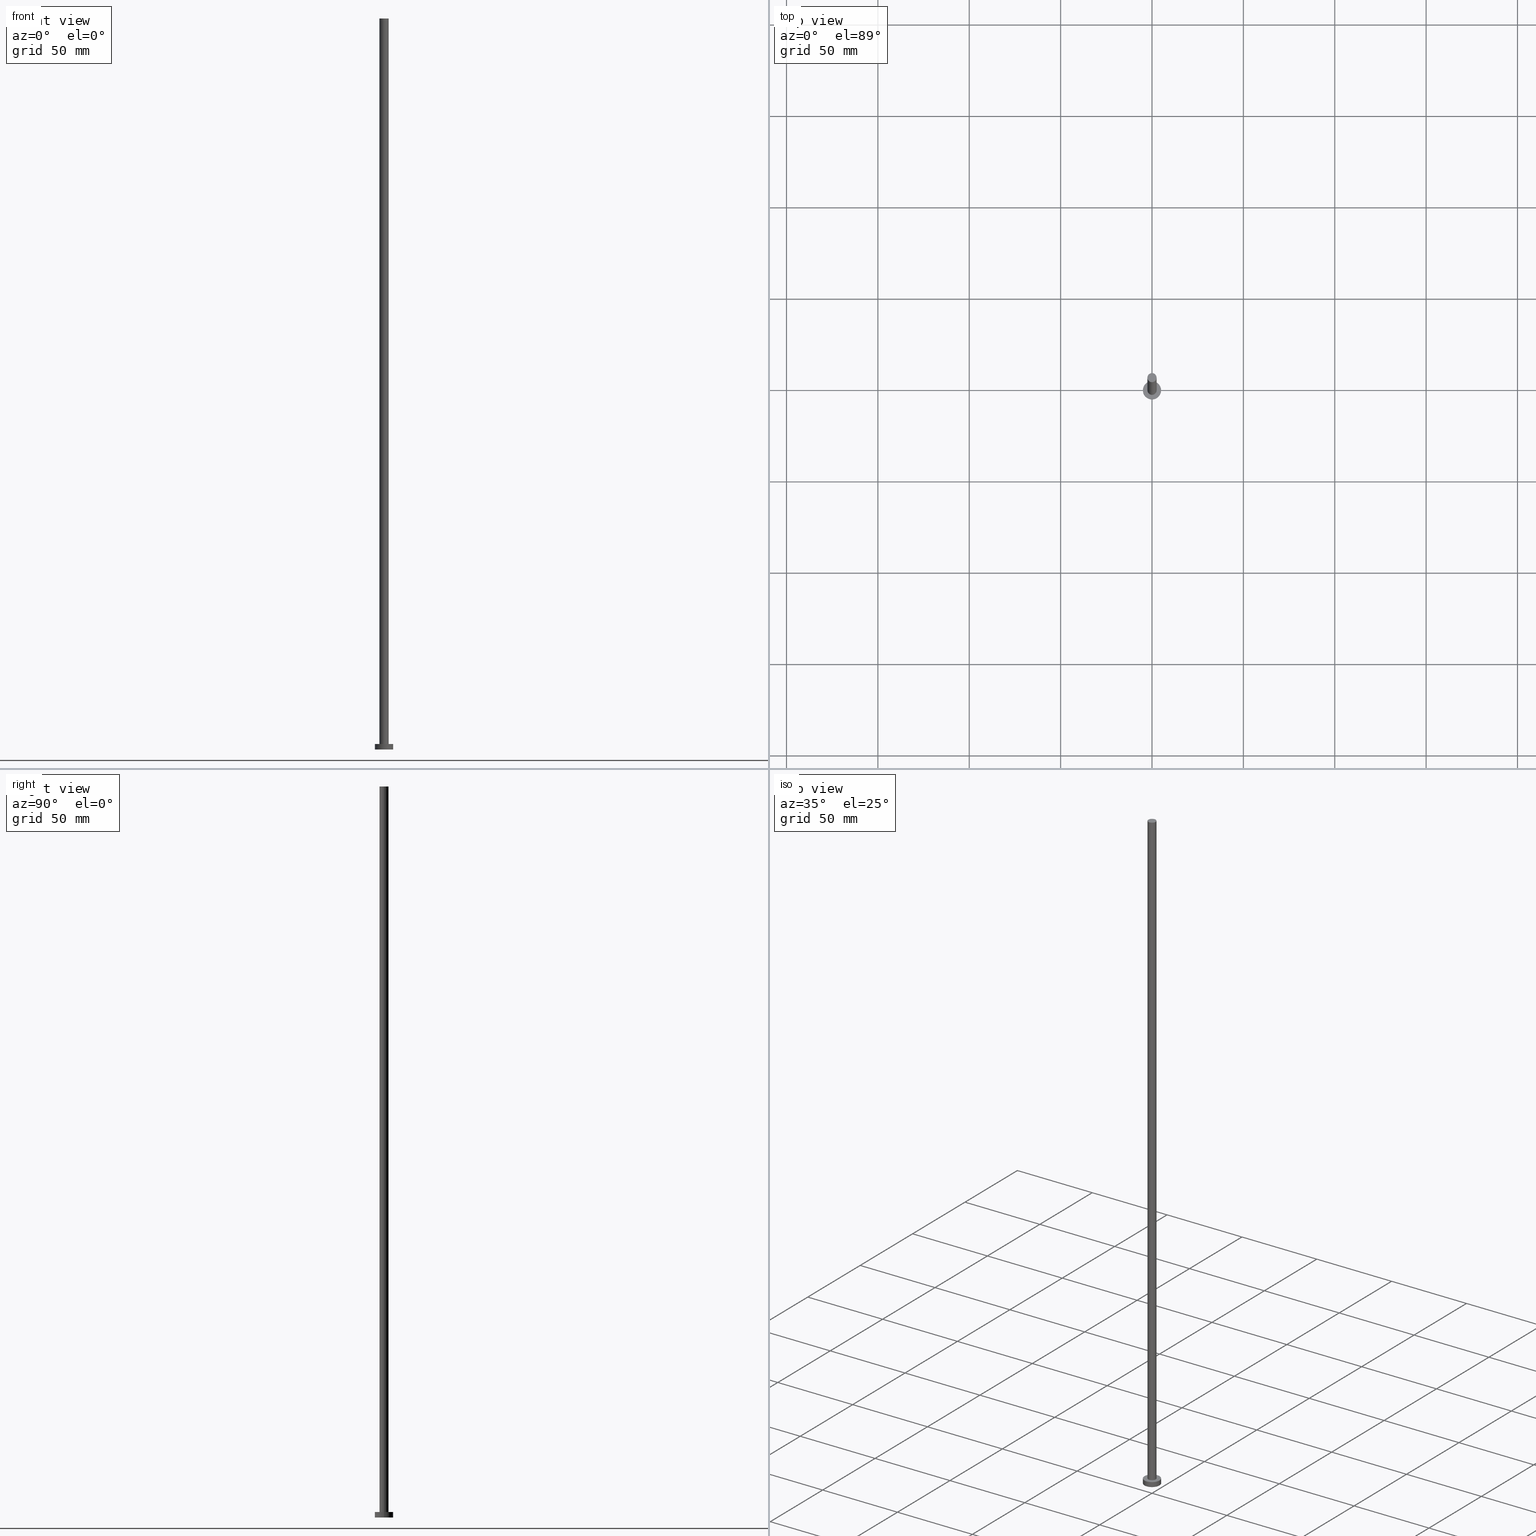
[diagram: canonical four-view strip — front | top / right | iso, engineering-drawing reading convention]
A machine part, canonical four-view strip (front | top / right | iso — engineering-drawing reading convention). The complete STEP part file that produces these views, byte-faithful:
ISO-10303-21;
HEADER;
FILE_DESCRIPTION (( 'STEP AP203' ),
    '1' );
FILE_NAME ('4c9e.STEP',
    '2023-02-13T15:50:03',
    ( '' ),
    ( '' ),
    'SwSTEP 2.0',
    'SolidWorks 2019',
    '' );
FILE_SCHEMA (( 'CONFIG_CONTROL_DESIGN' ));
ENDSEC;

DATA;
#1 = AXIS2_PLACEMENT_3D ( 'NONE', #166, #63, #142 ) ;
#2 = VERTEX_POINT ( 'NONE', #219 ) ;
#3 =( LENGTH_UNIT ( ) NAMED_UNIT ( * ) SI_UNIT ( .MILLI., .METRE. ) );
#4 = APPROVAL_STATUS ( 'not_yet_approved' ) ;
#5 = AXIS2_PLACEMENT_3D ( 'NONE', #197, #201, #13 ) ;
#6 = DIRECTION ( 'NONE',  ( -0.000000000000000000, -0.000000000000000000, -1.000000000000000000 ) ) ;
#7 = APPROVAL_PERSON_ORGANIZATION ( #170, #112, #104 ) ;
#8 = PLANE ( 'NONE',  #191 ) ;
#9 = DIRECTION ( 'NONE',  ( 1.000000000000000000, 0.000000000000000000, 0.000000000000000000 ) ) ;
#10 = CC_DESIGN_PERSON_AND_ORGANIZATION_ASSIGNMENT ( #214, #79, ( #16 ) ) ;
#11 = DIRECTION ( 'NONE',  ( 1.000000000000000000, 0.000000000000000000, 0.000000000000000000 ) ) ;
#12 = CYLINDRICAL_SURFACE ( 'NONE', #141, 5.000000000000000000 ) ;
#13 = DIRECTION ( 'NONE',  ( -1.000000000000000000, 0.000000000000000000, 0.000000000000000000 ) ) ;
#14 = CC_DESIGN_PERSON_AND_ORGANIZATION_ASSIGNMENT ( #255, #85, ( #206 ) ) ;
#15 = AXIS2_PLACEMENT_3D ( 'NONE', #161, #198, #195 ) ;
#16 = PRODUCT_DEFINITION_FORMATION_WITH_SPECIFIED_SOURCE ( 'LIBOVOLN�', '', #206, .NOT_KNOWN. ) ;
#17 = PLANE ( 'NONE',  #1 ) ;
#18 = CALENDAR_DATE ( 2023, 13, 2 ) ;
#19 = ORIENTED_EDGE ( 'NONE', *, *, #127, .F. ) ;
#20 = COORDINATED_UNIVERSAL_TIME_OFFSET ( 1, 0, .AHEAD. ) ;
#21 = DIRECTION ( 'NONE',  ( 1.000000000000000000, 0.000000000000000000, 0.000000000000000000 ) ) ;
#22 = CALENDAR_DATE ( 2023, 13, 2 ) ;
#23 = VERTEX_POINT ( 'NONE', #240 ) ;
#24 = APPLICATION_PROTOCOL_DEFINITION ( 'international standard', 'config_control_design', 1994, #58 ) ;
#25 = VERTEX_POINT ( 'NONE', #42 ) ;
#26 = CIRCLE ( 'NONE', #51, 2.500000000000000000 ) ;
#27 = FACE_OUTER_BOUND ( 'NONE', #106, .T. ) ;
#28 = CC_DESIGN_PERSON_AND_ORGANIZATION_ASSIGNMENT ( #228, #50, ( #147 ) ) ;
#29 = DIRECTION ( 'NONE',  ( -1.000000000000000000, 0.000000000000000000, 0.000000000000000000 ) ) ;
#30 = CARTESIAN_POINT ( 'NONE',  ( -2.500000000000000000, 0.000000000000000000, 3.000000000000000000 ) ) ;
#31 = DIRECTION ( 'NONE',  ( -0.000000000000000000, -0.000000000000000000, -1.000000000000000000 ) ) ;
#32 = DATE_TIME_ROLE ( 'classification_date' ) ;
#33 = DATE_AND_TIME ( #87, #160 ) ;
#34 = CC_DESIGN_SECURITY_CLASSIFICATION ( #69, ( #16 ) ) ;
#35 = EDGE_CURVE ( 'NONE', #25, #234, #190, .T. ) ;
#36 = CC_DESIGN_APPROVAL ( #186, ( #147 ) ) ;
#37 = ADVANCED_FACE ( 'NONE', ( #76 ), #12, .T. ) ;
#38 = ORIENTED_EDGE ( 'NONE', *, *, #91, .T. ) ;
#39 = DIRECTION ( 'NONE',  ( -0.000000000000000000, -0.000000000000000000, -1.000000000000000000 ) ) ;
#40 = AXIS2_PLACEMENT_3D ( 'NONE', #94, #244, #158 ) ;
#41 = PLANE ( 'NONE',  #148 ) ;
#42 = CARTESIAN_POINT ( 'NONE',  ( 5.000000000000000000, 6.123233995736766282E-16, 0.000000000000000000 ) ) ;
#43 = LINE ( 'NONE', #136, #194 ) ;
#44 = DIRECTION ( 'NONE',  ( -1.000000000000000000, 0.000000000000000000, 0.000000000000000000 ) ) ;
#45 = DIRECTION ( 'NONE',  ( 1.000000000000000000, 0.000000000000000000, -0.000000000000000000 ) ) ;
#46 = CC_DESIGN_DATE_AND_TIME_ASSIGNMENT ( #209, #32, ( #69 ) ) ;
#47 = PERSON_AND_ORGANIZATION ( #183, #155 ) ;
#48 = LINE ( 'NONE', #125, #205 ) ;
#49 = ORIENTED_EDGE ( 'NONE', *, *, #254, .T. ) ;
#50 = PERSON_AND_ORGANIZATION_ROLE ( 'creator' ) ;
#51 = AXIS2_PLACEMENT_3D ( 'NONE', #221, #56, #218 ) ;
#52 =( GEOMETRIC_REPRESENTATION_CONTEXT ( 3 ) GLOBAL_UNCERTAINTY_ASSIGNED_CONTEXT ( ( #245 ) ) GLOBAL_UNIT_ASSIGNED_CONTEXT ( ( #3, #68, #173 ) ) REPRESENTATION_CONTEXT ( 'NONE', 'WORKASPACE' ) );
#53 = ORIENTED_EDGE ( 'NONE', *, *, #35, .F. ) ;
#54 = CLOSED_SHELL ( 'NONE', ( #156, #59, #37, #236, #124, #62, #246 ) ) ;
#55 = EDGE_LOOP ( 'NONE', ( #192, #74, #188, #49 ) ) ;
#56 = DIRECTION ( 'NONE',  ( 0.000000000000000000, 0.000000000000000000, 1.000000000000000000 ) ) ;
#57 = CARTESIAN_POINT ( 'NONE',  ( 0.000000000000000000, 0.000000000000000000, 3.000000000000000000 ) ) ;
#58 = APPLICATION_CONTEXT ( 'configuration controlled 3d designs of mechanical parts and assemblies' ) ;
#59 = ADVANCED_FACE ( 'NONE', ( #157 ), #139, .T. ) ;
#60 = LINE ( 'NONE', #178, #165 ) ;
#61 = LOCAL_TIME ( 16, 50, 2.000000000000000000, #204 ) ;
#62 = ADVANCED_FACE ( 'NONE', ( #222 ), #216, .T. ) ;
#63 = DIRECTION ( 'NONE',  ( 0.000000000000000000, 0.000000000000000000, 1.000000000000000000 ) ) ;
#64 = EDGE_LOOP ( 'NONE', ( #239, #208, #67, #168 ) ) ;
#65 = ORIENTED_EDGE ( 'NONE', *, *, #66, .F. ) ;
#66 = EDGE_CURVE ( 'NONE', #2, #73, #93, .T. ) ;
#67 = ORIENTED_EDGE ( 'NONE', *, *, #207, .T. ) ;
#68 =( NAMED_UNIT ( * ) PLANE_ANGLE_UNIT ( ) SI_UNIT ( $, .RADIAN. ) );
#69 = SECURITY_CLASSIFICATION ( '', '', #224 ) ;
#70 = CALENDAR_DATE ( 2023, 13, 2 ) ;
#71 = CARTESIAN_POINT ( 'NONE',  ( 0.000000000000000000, 0.000000000000000000, 400.0000000000000000 ) ) ;
#72 = DIRECTION ( 'NONE',  ( 0.000000000000000000, 0.000000000000000000, 1.000000000000000000 ) ) ;
#73 = VERTEX_POINT ( 'NONE', #30 ) ;
#74 = ORIENTED_EDGE ( 'NONE', *, *, #177, .F. ) ;
#75 = VECTOR ( 'NONE', #6, 1000.000000000000000 ) ;
#76 = FACE_OUTER_BOUND ( 'NONE', #64, .T. ) ;
#77 = DIRECTION ( 'NONE',  ( 1.000000000000000000, 0.000000000000000000, -0.000000000000000000 ) ) ;
#78 = AXIS2_PLACEMENT_3D ( 'NONE', #71, #200, #44 ) ;
#79 = PERSON_AND_ORGANIZATION_ROLE ( 'creator' ) ;
#80 = APPROVAL_DATE_TIME ( #83, #112 ) ;
#81 = DIRECTION ( 'NONE',  ( 0.000000000000000000, 0.000000000000000000, 1.000000000000000000 ) ) ;
#82 = ORIENTED_EDGE ( 'NONE', *, *, #115, .F. ) ;
#83 = DATE_AND_TIME ( #18, #122 ) ;
#84 = DIRECTION ( 'NONE',  ( 1.000000000000000000, 0.000000000000000000, 0.000000000000000000 ) ) ;
#85 = PERSON_AND_ORGANIZATION_ROLE ( 'design_owner' ) ;
#86 = ORIENTED_EDGE ( 'NONE', *, *, #66, .T. ) ;
#87 = CALENDAR_DATE ( 2023, 13, 2 ) ;
#88 = CC_DESIGN_DATE_AND_TIME_ASSIGNMENT ( #233, #110, ( #147 ) ) ;
#89 = ORIENTED_EDGE ( 'NONE', *, *, #254, .F. ) ;
#90 = VERTEX_POINT ( 'NONE', #242 ) ;
#91 = EDGE_CURVE ( 'NONE', #109, #23, #26, .T. ) ;
#92 = FACE_OUTER_BOUND ( 'NONE', #146, .T. ) ;
#93 = CIRCLE ( 'NONE', #129, 2.500000000000000000 ) ;
#94 = CARTESIAN_POINT ( 'NONE',  ( 0.000000000000000000, 0.000000000000000000, 400.0000000000000000 ) ) ;
#95 = DIRECTION ( 'NONE',  ( 0.000000000000000000, 0.000000000000000000, 1.000000000000000000 ) ) ;
#96 = PRODUCT_DEFINITION_SHAPE ( 'NONE', 'NONE',  #147 ) ;
#97 = CARTESIAN_POINT ( 'NONE',  ( 5.000000000000000000, 6.123233995736766282E-16, 3.000000000000000000 ) ) ;
#98 = DIRECTION ( 'NONE',  ( -0.000000000000000000, -0.000000000000000000, -1.000000000000000000 ) ) ;
#99 = CARTESIAN_POINT ( 'NONE',  ( 0.000000000000000000, 0.000000000000000000, 400.0000000000000000 ) ) ;
#100 = APPROVAL ( #4, 'NEUR�EN�' ) ;
#101 = EDGE_CURVE ( 'NONE', #109, #2, #43, .T. ) ;
#102 = CARTESIAN_POINT ( 'NONE',  ( 0.000000000000000000, 0.000000000000000000, 0.000000000000000000 ) ) ;
#103 = CIRCLE ( 'NONE', #220, 5.000000000000000000 ) ;
#104 = APPROVAL_ROLE ( '' ) ;
#105 = APPROVAL_DATE_TIME ( #33, #100 ) ;
#106 = EDGE_LOOP ( 'NONE', ( #82, #53 ) ) ;
#107 = APPLICATION_PROTOCOL_DEFINITION ( 'international standard', 'config_control_design', 1994, #120 ) ;
#108 = APPROVAL_ROLE ( '' ) ;
#109 = VERTEX_POINT ( 'NONE', #114 ) ;
#110 = DATE_TIME_ROLE ( 'creation_date' ) ;
#111 = CIRCLE ( 'NONE', #40, 2.500000000000000000 ) ;
#112 = APPROVAL ( #187, 'NEUR�EN�' ) ;
#113 = EDGE_LOOP ( 'NONE', ( #89, #65 ) ) ;
#114 = CARTESIAN_POINT ( 'NONE',  ( 2.500000000000000000, 3.061616997868383141E-16, 400.0000000000000000 ) ) ;
#115 = EDGE_CURVE ( 'NONE', #234, #25, #229, .T. ) ;
#116 = LOCAL_TIME ( 16, 50, 2.000000000000000000, #174 ) ;
#117 = CARTESIAN_POINT ( 'NONE',  ( 0.000000000000000000, 0.000000000000000000, 3.000000000000000000 ) ) ;
#118 = CYLINDRICAL_SURFACE ( 'NONE', #196, 2.500000000000000000 ) ;
#119 = FACE_OUTER_BOUND ( 'NONE', #212, .T. ) ;
#120 = APPLICATION_CONTEXT ( 'configuration controlled 3d designs of mechanical parts and assemblies' ) ;
#121 = CARTESIAN_POINT ( 'NONE',  ( -5.000000000000000000, 0.000000000000000000, 0.000000000000000000 ) ) ;
#122 = LOCAL_TIME ( 16, 50, 2.000000000000000000, #20 ) ;
#123 = PERSON_AND_ORGANIZATION ( #183, #155 ) ;
#124 = ADVANCED_FACE ( 'NONE', ( #27 ), #41, .F. ) ;
#125 = CARTESIAN_POINT ( 'NONE',  ( -2.500000000000000000, 0.000000000000000000, 400.0000000000000000 ) ) ;
#126 = MANIFOLD_SOLID_BREP ( 'P�idat vysunut�m3', #54 ) ;
#127 = EDGE_CURVE ( 'NONE', #193, #90, #184, .T. ) ;
#128 = ORIENTED_EDGE ( 'NONE', *, *, #91, .F. ) ;
#129 = AXIS2_PLACEMENT_3D ( 'NONE', #238, #72, #11 ) ;
#130 = APPROVAL_ROLE ( '' ) ;
#131 = CIRCLE ( 'NONE', #143, 2.500000000000000000 ) ;
#132 = EDGE_LOOP ( 'NONE', ( #19, #252, #172, #144 ) ) ;
#133 = PRODUCT_RELATED_PRODUCT_CATEGORY ( 'detail', '', ( #206 ) ) ;
#134 = DIRECTION ( 'NONE',  ( 0.000000000000000000, 0.000000000000000000, 1.000000000000000000 ) ) ;
#135 = AXIS2_PLACEMENT_3D ( 'NONE', #102, #152, #21 ) ;
#136 = CARTESIAN_POINT ( 'NONE',  ( 2.500000000000000000, 3.061616997868383141E-16, 400.0000000000000000 ) ) ;
#137 = DIRECTION ( 'NONE',  ( 0.000000000000000000, 0.000000000000000000, 1.000000000000000000 ) ) ;
#138 = CC_DESIGN_PERSON_AND_ORGANIZATION_ASSIGNMENT ( #123, #249, ( #16 ) ) ;
#139 = CYLINDRICAL_SURFACE ( 'NONE', #5, 5.000000000000000000 ) ;
#140 = DIRECTION ( 'NONE',  ( -0.000000000000000000, -0.000000000000000000, -1.000000000000000000 ) ) ;
#141 = AXIS2_PLACEMENT_3D ( 'NONE', #162, #98, #243 ) ;
#142 = DIRECTION ( 'NONE',  ( 1.000000000000000000, 0.000000000000000000, -0.000000000000000000 ) ) ;
#143 = AXIS2_PLACEMENT_3D ( 'NONE', #225, #145, #84 ) ;
#144 = ORIENTED_EDGE ( 'NONE', *, *, #207, .F. ) ;
#145 = DIRECTION ( 'NONE',  ( 0.000000000000000000, 0.000000000000000000, 1.000000000000000000 ) ) ;
#146 = EDGE_LOOP ( 'NONE', ( #213, #159 ) ) ;
#147 = PRODUCT_DEFINITION ( 'NEZN�M�', '', #16, #164 ) ;
#148 = AXIS2_PLACEMENT_3D ( 'NONE', #182, #95, #77 ) ;
#149 = PERSON_AND_ORGANIZATION_ROLE ( 'classification_officer' ) ;
#150 = DATE_AND_TIME ( #70, #116 ) ;
#151 = APPROVAL_PERSON_ORGANIZATION ( #176, #100, #130 ) ;
#152 = DIRECTION ( 'NONE',  ( 0.000000000000000000, 0.000000000000000000, 1.000000000000000000 ) ) ;
#153 = ORIENTED_EDGE ( 'NONE', *, *, #101, .T. ) ;
#154 = AXIS2_PLACEMENT_3D ( 'NONE', #199, #134, #175 ) ;
#155 = ORGANIZATION ( 'NEUR�EN�', 'NEUR�EN�', '' ) ;
#156 = ADVANCED_FACE ( 'NONE', ( #119 ), #118, .T. ) ;
#157 = FACE_OUTER_BOUND ( 'NONE', #132, .T. ) ;
#158 = DIRECTION ( 'NONE',  ( 1.000000000000000000, 0.000000000000000000, 0.000000000000000000 ) ) ;
#159 = ORIENTED_EDGE ( 'NONE', *, *, #127, .T. ) ;
#160 = LOCAL_TIME ( 16, 50, 2.000000000000000000, #211 ) ;
#161 = CARTESIAN_POINT ( 'NONE',  ( 0.000000000000000000, 0.000000000000000000, 0.000000000000000000 ) ) ;
#162 = CARTESIAN_POINT ( 'NONE',  ( 0.000000000000000000, 0.000000000000000000, 3.000000000000000000 ) ) ;
#163 = DIRECTION ( 'NONE',  ( -0.000000000000000000, -0.000000000000000000, -1.000000000000000000 ) ) ;
#164 = DESIGN_CONTEXT ( 'detailed design', #58, 'design' ) ;
#165 = VECTOR ( 'NONE', #140, 1000.000000000000000 ) ;
#166 = CARTESIAN_POINT ( 'NONE',  ( 0.000000000000000000, 0.000000000000000000, 400.0000000000000000 ) ) ;
#167 = SHAPE_DEFINITION_REPRESENTATION ( #96, #169 ) ;
#168 = ORIENTED_EDGE ( 'NONE', *, *, #115, .T. ) ;
#169 = ADVANCED_BREP_SHAPE_REPRESENTATION ( '4c9e', ( #126, #135 ), #52 ) ;
#170 = PERSON_AND_ORGANIZATION ( #183, #155 ) ;
#171 = PERSON_AND_ORGANIZATION ( #183, #155 ) ;
#172 = ORIENTED_EDGE ( 'NONE', *, *, #35, .T. ) ;
#173 =( NAMED_UNIT ( * ) SI_UNIT ( $, .STERADIAN. ) SOLID_ANGLE_UNIT ( ) );
#174 = COORDINATED_UNIVERSAL_TIME_OFFSET ( 1, 0, .AHEAD. ) ;
#175 = DIRECTION ( 'NONE',  ( 1.000000000000000000, 0.000000000000000000, 0.000000000000000000 ) ) ;
#176 = PERSON_AND_ORGANIZATION ( #183, #155 ) ;
#177 = EDGE_CURVE ( 'NONE', #23, #109, #111, .T. ) ;
#178 = CARTESIAN_POINT ( 'NONE',  ( 5.000000000000000000, 6.123233995736766282E-16, 3.000000000000000000 ) ) ;
#179 = FACE_BOUND ( 'NONE', #113, .T. ) ;
#180 = DIRECTION ( 'NONE',  ( 0.000000000000000000, 0.000000000000000000, 1.000000000000000000 ) ) ;
#181 = LINE ( 'NONE', #223, #75 ) ;
#182 = CARTESIAN_POINT ( 'NONE',  ( 0.000000000000000000, 0.000000000000000000, 0.000000000000000000 ) ) ;
#183 = PERSON ( 'NEUR�EN�', 'NEUR�EN�', 'NEUR�EN�', ('NEUR�EN�'), ('NEUR�EN�'), ('NEUR�EN�') ) ;
#184 = CIRCLE ( 'NONE', #217, 5.000000000000000000 ) ;
#185 = CC_DESIGN_APPROVAL ( #100, ( #16 ) ) ;
#186 = APPROVAL ( #253, 'NEUR�EN�' ) ;
#187 = APPROVAL_STATUS ( 'not_yet_approved' ) ;
#188 = ORIENTED_EDGE ( 'NONE', *, *, #247, .T. ) ;
#189 = EDGE_LOOP ( 'NONE', ( #210, #38 ) ) ;
#190 = CIRCLE ( 'NONE', #154, 5.000000000000000000 ) ;
#191 = AXIS2_PLACEMENT_3D ( 'NONE', #57, #137, #45 ) ;
#192 = ORIENTED_EDGE ( 'NONE', *, *, #101, .F. ) ;
#193 = VERTEX_POINT ( 'NONE', #97 ) ;
#194 = VECTOR ( 'NONE', #39, 1000.000000000000000 ) ;
#195 = DIRECTION ( 'NONE',  ( 1.000000000000000000, 0.000000000000000000, 0.000000000000000000 ) ) ;
#196 = AXIS2_PLACEMENT_3D ( 'NONE', #99, #163, #29 ) ;
#197 = CARTESIAN_POINT ( 'NONE',  ( 0.000000000000000000, 0.000000000000000000, 3.000000000000000000 ) ) ;
#198 = DIRECTION ( 'NONE',  ( 0.000000000000000000, 0.000000000000000000, 1.000000000000000000 ) ) ;
#199 = CARTESIAN_POINT ( 'NONE',  ( 0.000000000000000000, 0.000000000000000000, 0.000000000000000000 ) ) ;
#200 = DIRECTION ( 'NONE',  ( -0.000000000000000000, -0.000000000000000000, -1.000000000000000000 ) ) ;
#201 = DIRECTION ( 'NONE',  ( -0.000000000000000000, -0.000000000000000000, -1.000000000000000000 ) ) ;
#202 = EDGE_CURVE ( 'NONE', #193, #25, #60, .T. ) ;
#203 = CARTESIAN_POINT ( 'NONE',  ( 0.000000000000000000, 0.000000000000000000, 3.000000000000000000 ) ) ;
#204 = COORDINATED_UNIVERSAL_TIME_OFFSET ( 1, 0, .AHEAD. ) ;
#205 = VECTOR ( 'NONE', #31, 1000.000000000000000 ) ;
#206 = PRODUCT ( '4c9e', '4c9e', '', ( #235 ) ) ;
#207 = EDGE_CURVE ( 'NONE', #90, #234, #181, .T. ) ;
#208 = ORIENTED_EDGE ( 'NONE', *, *, #241, .F. ) ;
#209 = DATE_AND_TIME ( #230, #61 ) ;
#210 = ORIENTED_EDGE ( 'NONE', *, *, #177, .T. ) ;
#211 = COORDINATED_UNIVERSAL_TIME_OFFSET ( 1, 0, .AHEAD. ) ;
#212 = EDGE_LOOP ( 'NONE', ( #128, #153, #86, #227 ) ) ;
#213 = ORIENTED_EDGE ( 'NONE', *, *, #241, .T. ) ;
#214 = PERSON_AND_ORGANIZATION ( #183, #155 ) ;
#215 = COORDINATED_UNIVERSAL_TIME_OFFSET ( 1, 0, .AHEAD. ) ;
#216 = CYLINDRICAL_SURFACE ( 'NONE', #78, 2.500000000000000000 ) ;
#217 = AXIS2_PLACEMENT_3D ( 'NONE', #117, #180, #9 ) ;
#218 = DIRECTION ( 'NONE',  ( 1.000000000000000000, 0.000000000000000000, 0.000000000000000000 ) ) ;
#219 = CARTESIAN_POINT ( 'NONE',  ( 2.500000000000000000, 3.061616997868383141E-16, 3.000000000000000000 ) ) ;
#220 = AXIS2_PLACEMENT_3D ( 'NONE', #203, #81, #250 ) ;
#221 = CARTESIAN_POINT ( 'NONE',  ( 0.000000000000000000, 0.000000000000000000, 400.0000000000000000 ) ) ;
#222 = FACE_OUTER_BOUND ( 'NONE', #55, .T. ) ;
#223 = CARTESIAN_POINT ( 'NONE',  ( -5.000000000000000000, 0.000000000000000000, 3.000000000000000000 ) ) ;
#224 = SECURITY_CLASSIFICATION_LEVEL ( 'unclassified' ) ;
#225 = CARTESIAN_POINT ( 'NONE',  ( 0.000000000000000000, 0.000000000000000000, 3.000000000000000000 ) ) ;
#226 = CC_DESIGN_PERSON_AND_ORGANIZATION_ASSIGNMENT ( #47, #149, ( #69 ) ) ;
#227 = ORIENTED_EDGE ( 'NONE', *, *, #247, .F. ) ;
#228 = PERSON_AND_ORGANIZATION ( #183, #155 ) ;
#229 = CIRCLE ( 'NONE', #15, 5.000000000000000000 ) ;
#230 = CALENDAR_DATE ( 2023, 13, 2 ) ;
#231 = APPROVAL_DATE_TIME ( #150, #186 ) ;
#232 = APPROVAL_PERSON_ORGANIZATION ( #171, #186, #108 ) ;
#233 = DATE_AND_TIME ( #22, #237 ) ;
#234 = VERTEX_POINT ( 'NONE', #121 ) ;
#235 = MECHANICAL_CONTEXT ( 'NONE', #120, 'mechanical' ) ;
#236 = ADVANCED_FACE ( 'NONE', ( #179, #92 ), #8, .T. ) ;
#237 = LOCAL_TIME ( 16, 50, 2.000000000000000000, #215 ) ;
#238 = CARTESIAN_POINT ( 'NONE',  ( 0.000000000000000000, 0.000000000000000000, 3.000000000000000000 ) ) ;
#239 = ORIENTED_EDGE ( 'NONE', *, *, #202, .F. ) ;
#240 = CARTESIAN_POINT ( 'NONE',  ( -2.500000000000000000, 0.000000000000000000, 400.0000000000000000 ) ) ;
#241 = EDGE_CURVE ( 'NONE', #90, #193, #103, .T. ) ;
#242 = CARTESIAN_POINT ( 'NONE',  ( -5.000000000000000000, 0.000000000000000000, 3.000000000000000000 ) ) ;
#243 = DIRECTION ( 'NONE',  ( -1.000000000000000000, 0.000000000000000000, 0.000000000000000000 ) ) ;
#244 = DIRECTION ( 'NONE',  ( 0.000000000000000000, 0.000000000000000000, 1.000000000000000000 ) ) ;
#245 = UNCERTAINTY_MEASURE_WITH_UNIT (LENGTH_MEASURE( 1.000000000000000082E-05 ), #3, 'distance_accuracy_value', 'NONE');
#246 = ADVANCED_FACE ( 'NONE', ( #248 ), #17, .T. ) ;
#247 = EDGE_CURVE ( 'NONE', #23, #73, #48, .T. ) ;
#248 = FACE_OUTER_BOUND ( 'NONE', #189, .T. ) ;
#249 = PERSON_AND_ORGANIZATION_ROLE ( 'design_supplier' ) ;
#250 = DIRECTION ( 'NONE',  ( 1.000000000000000000, 0.000000000000000000, 0.000000000000000000 ) ) ;
#251 = CC_DESIGN_APPROVAL ( #112, ( #69 ) ) ;
#252 = ORIENTED_EDGE ( 'NONE', *, *, #202, .T. ) ;
#253 = APPROVAL_STATUS ( 'not_yet_approved' ) ;
#254 = EDGE_CURVE ( 'NONE', #73, #2, #131, .T. ) ;
#255 = PERSON_AND_ORGANIZATION ( #183, #155 ) ;
ENDSEC;
END-ISO-10303-21;
